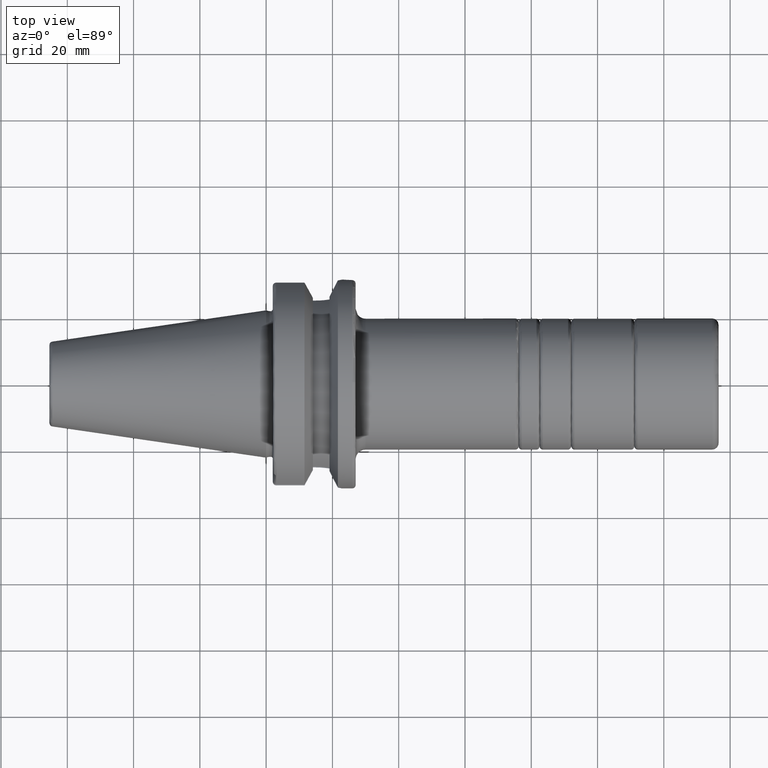
[diagram: clean part render]
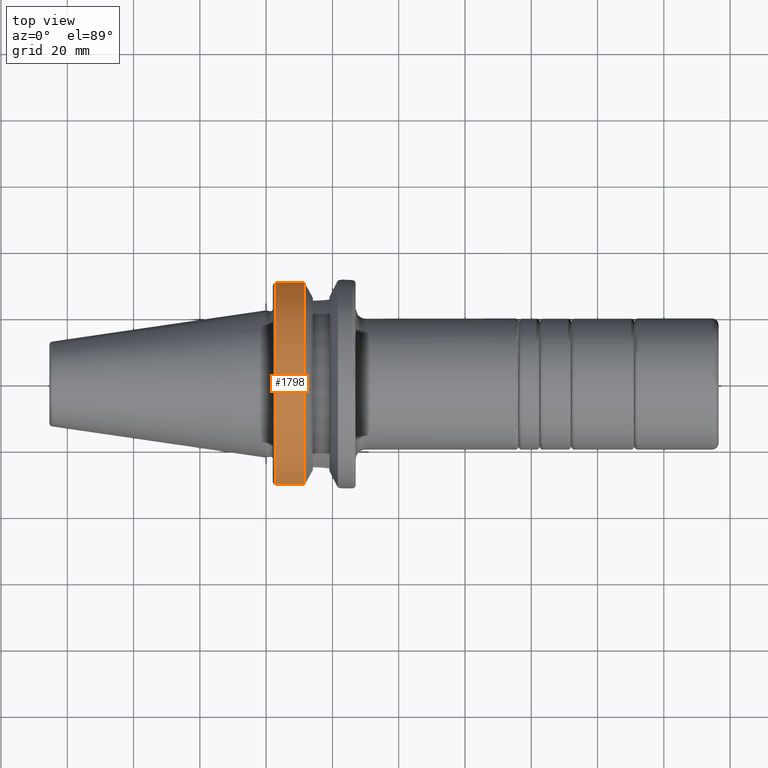
[diagram: same view with one face highlighted and labeled with its STEP entity id]
A machine part, top view. The second image highlights one B-rep face of the part: STEP entity #1798.
In plain terms, the highlighted cylindrical surface (partial cylindrical patch) has radius 31.5 mm, axis along (1, 0, 0).
Its self-contained STEP definition (entity closure, byte-faithful):
#220=FACE_OUTER_BOUND('',#334,.T.);
#334=EDGE_LOOP('',(#1449,#1450,#1451,#1452));
#464=CIRCLE('',#2104,31.5);
#465=CIRCLE('',#2106,31.5000000000001);
#555=LINE('',#3074,#655);
#575=LINE('',#3228,#675);
#655=VECTOR('',#2394,10.);
#675=VECTOR('',#2462,10.);
#806=VERTEX_POINT('',#3069);
#807=VERTEX_POINT('',#3073);
#836=VERTEX_POINT('',#3216);
#837=VERTEX_POINT('',#3227);
#1001=EDGE_CURVE('',#807,#806,#555,.T.);
#1044=EDGE_CURVE('',#837,#836,#575,.T.);
#1065=EDGE_CURVE('',#836,#807,#464,.T.);
#1066=EDGE_CURVE('',#837,#806,#465,.T.);
#1449=ORIENTED_EDGE('',*,*,#1001,.T.);
#1450=ORIENTED_EDGE('',*,*,#1066,.F.);
#1451=ORIENTED_EDGE('',*,*,#1044,.T.);
#1452=ORIENTED_EDGE('',*,*,#1065,.T.);
#1734=CYLINDRICAL_SURFACE('',#2105,31.5);
#1798=ADVANCED_FACE('',(#220),#1734,.T.);
#2104=AXIS2_PLACEMENT_3D('',#3271,#2514,#2515);
#2105=AXIS2_PLACEMENT_3D('',#3272,#2516,#2517);
#2106=AXIS2_PLACEMENT_3D('',#3273,#2518,#2519);
#2394=DIRECTION('',(1.,0.,0.));
#2462=DIRECTION('',(-1.,0.,0.));
#2514=DIRECTION('center_axis',(1.,0.,0.));
#2515=DIRECTION('ref_axis',(0.,0.,-1.));
#2516=DIRECTION('center_axis',(1.,0.,0.));
#2517=DIRECTION('ref_axis',(0.,1.,0.));
#2518=DIRECTION('center_axis',(1.,0.,0.));
#2519=DIRECTION('ref_axis',(0.,0.,-1.));
#3069=CARTESIAN_POINT('',(11.5690363073382,-30.4540227227866,8.05));
#3073=CARTESIAN_POINT('',(2.99999999999999,-30.4540227227866,8.05));
#3074=CARTESIAN_POINT('',(7.28451815366907,-30.4540227227866,8.05));
#3216=CARTESIAN_POINT('',(2.99999999999999,30.4540227227866,8.05));
#3227=CARTESIAN_POINT('',(11.5690363073382,30.4540227227866,8.05));
#3228=CARTESIAN_POINT('',(7.28451815366907,30.4540227227866,8.05));
#3271=CARTESIAN_POINT('Origin',(2.99999999999999,0.,0.));
#3272=CARTESIAN_POINT('Origin',(7.28451815366907,0.,0.));
#3273=CARTESIAN_POINT('Origin',(11.5690363073382,0.,0.));